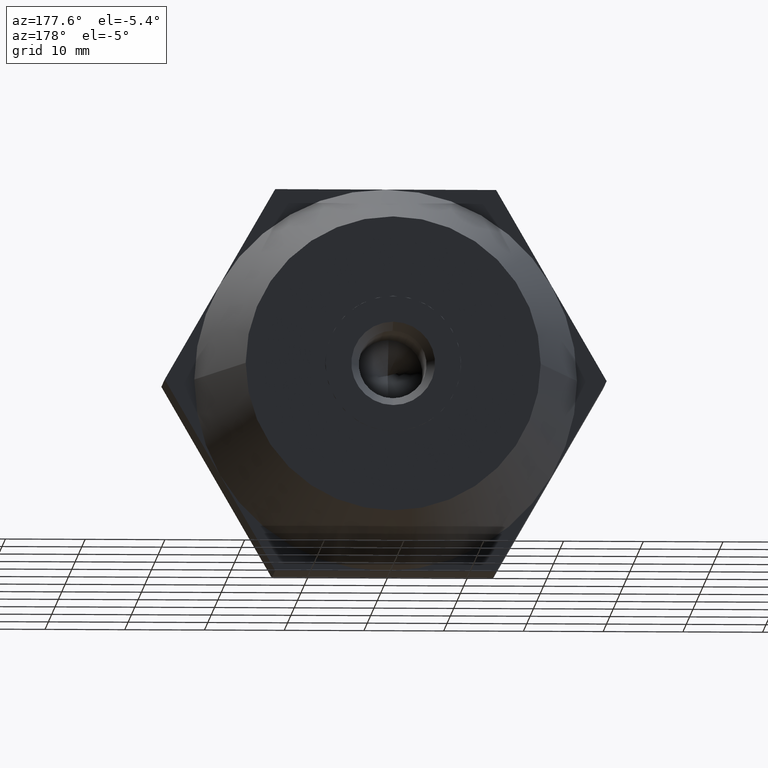
[diagram: clean part render]
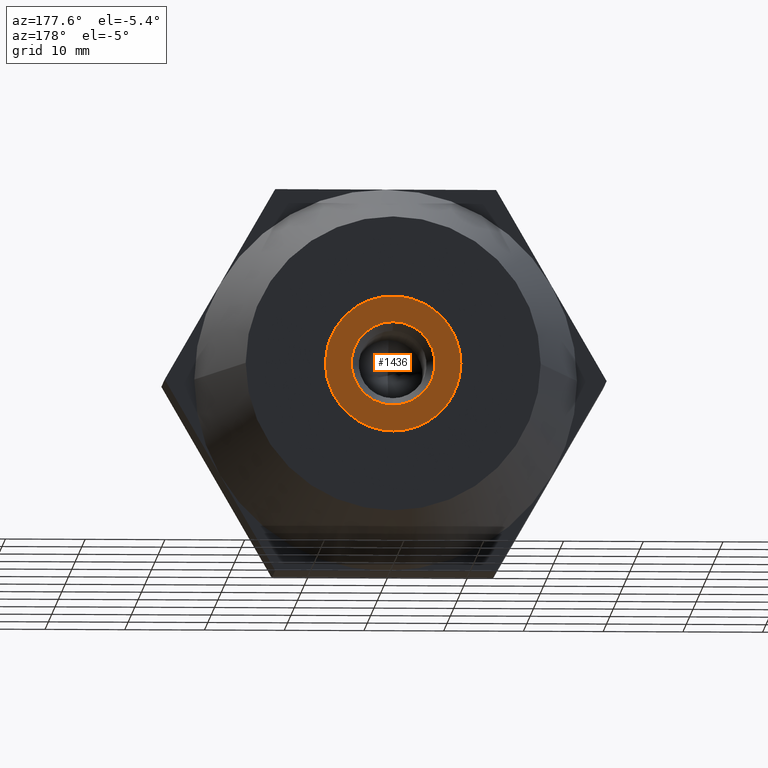
[diagram: same view with one face highlighted and labeled with its STEP entity id]
A machine part, auxiliary view. The second image highlights one B-rep face of the part: STEP entity #1436.
In plain terms, the highlighted planar face has unit normal (0, 1, 0).
Its self-contained STEP definition (entity closure, byte-faithful):
#30 = VERTEX_POINT ( 'NONE', #1177 ) ;
#122 = FACE_BOUND ( 'NONE', #180, .T. ) ;
#143 = DIRECTION ( 'NONE',  ( 0.0000000000000000000, 0.0000000000000000000, 1.000000000000000000 ) ) ;
#180 = EDGE_LOOP ( 'NONE', ( #1931, #3163 ) ) ;
#213 = CARTESIAN_POINT ( 'NONE',  ( 4.250000000000000000, 17.00000000000000000, -7.361215932167730200 ) ) ;
#286 = CARTESIAN_POINT ( 'NONE',  ( -8.500000000000000000, 17.00000000000000000, 0.0000000000000000000 ) ) ;
#290 = ORIENTED_EDGE ( 'NONE', *, *, #553, .F. ) ;
#320 = DIRECTION ( 'NONE',  ( 0.0000000000000000000, 1.000000000000000000, 0.0000000000000000000 ) ) ;
#355 = DIRECTION ( 'NONE',  ( 0.0000000000000000000, 0.0000000000000000000, 1.000000000000000000 ) ) ;
#366 = CARTESIAN_POINT ( 'NONE',  ( 0.0000000000000000000, 17.00000000000000000, 0.0000000000000000000 ) ) ;
#404 = ORIENTED_EDGE ( 'NONE', *, *, #2368, .F. ) ;
#483 = CARTESIAN_POINT ( 'NONE',  ( 0.0000000000000000000, 17.00000000000000000, 0.0000000000000000000 ) ) ;
#524 = DIRECTION ( 'NONE',  ( 0.0000000000000000000, 0.0000000000000000000, 1.000000000000000000 ) ) ;
#553 = EDGE_CURVE ( 'NONE', #2452, #1314, #3205, .T. ) ;
#590 = CARTESIAN_POINT ( 'NONE',  ( -4.250000000000000000, 17.00000000000000000, -7.361215932167730200 ) ) ;
#666 = ORIENTED_EDGE ( 'NONE', *, *, #1765, .F. ) ;
#697 = ORIENTED_EDGE ( 'NONE', *, *, #1522, .F. ) ;
#700 = CARTESIAN_POINT ( 'NONE',  ( 0.0000000000000000000, 17.00000000000000000, 0.0000000000000000000 ) ) ;
#751 = CARTESIAN_POINT ( 'NONE',  ( 0.0000000000000000000, 17.00000000000000000, 0.0000000000000000000 ) ) ;
#830 = EDGE_CURVE ( 'NONE', #2135, #30, #1939, .T. ) ;
#889 = CIRCLE ( 'NONE', #3684, 8.500000000000000000 ) ;
#968 = CARTESIAN_POINT ( 'NONE',  ( 0.0000000000000000000, 17.00000000000000000, 5.250000000000000000 ) ) ;
#1082 = CARTESIAN_POINT ( 'NONE',  ( -4.250000000000000000, 17.00000000000000000, 7.361215932167730200 ) ) ;
#1095 = DIRECTION ( 'NONE',  ( -0.0000000000000000000, -1.000000000000000000, -0.0000000000000000000 ) ) ;
#1177 = CARTESIAN_POINT ( 'NONE',  ( 6.429395695523604200E-016, 17.00000000000000000, -5.250000000000000000 ) ) ;
#1226 = DIRECTION ( 'NONE',  ( 0.0000000000000000000, 0.0000000000000000000, 1.000000000000000000 ) ) ;
#1262 = DIRECTION ( 'NONE',  ( -0.0000000000000000000, -1.000000000000000000, -0.0000000000000000000 ) ) ;
#1293 = CARTESIAN_POINT ( 'NONE',  ( 0.0000000000000000000, 17.00000000000000000, 0.0000000000000000000 ) ) ;
#1314 = VERTEX_POINT ( 'NONE', #590 ) ;
#1316 = EDGE_CURVE ( 'NONE', #30, #2135, #3863, .T. ) ;
#1395 = AXIS2_PLACEMENT_3D ( 'NONE', #3468, #2583, #1606 ) ;
#1436 = ADVANCED_FACE ( 'NONE', ( #2664, #122 ), #1540, .T. ) ;
#1522 = EDGE_CURVE ( 'NONE', #1733, #2452, #2457, .T. ) ;
#1540 = PLANE ( 'NONE',  #1545 ) ;
#1545 = AXIS2_PLACEMENT_3D ( 'NONE', #3745, #2769, #3382 ) ;
#1579 = AXIS2_PLACEMENT_3D ( 'NONE', #366, #1917, #1904 ) ;
#1606 = DIRECTION ( 'NONE',  ( -1.776356839400250500E-015, 0.0000000000000000000, 1.000000000000000000 ) ) ;
#1675 = EDGE_CURVE ( 'NONE', #1796, #3692, #3956, .T. ) ;
#1733 = VERTEX_POINT ( 'NONE', #1082 ) ;
#1748 = VERTEX_POINT ( 'NONE', #3226 ) ;
#1765 = EDGE_CURVE ( 'NONE', #1748, #1733, #2717, .T. ) ;
#1796 = VERTEX_POINT ( 'NONE', #213 ) ;
#1818 = CIRCLE ( 'NONE', #1579, 8.500000000000000000 ) ;
#1860 = AXIS2_PLACEMENT_3D ( 'NONE', #751, #1962, #143 ) ;
#1888 = CIRCLE ( 'NONE', #3958, 8.500000000000000000 ) ;
#1904 = DIRECTION ( 'NONE',  ( 2.664535259100376100E-015, 0.0000000000000000000, 1.000000000000000000 ) ) ;
#1917 = DIRECTION ( 'NONE',  ( -0.0000000000000000000, -1.000000000000000000, -0.0000000000000000000 ) ) ;
#1931 = ORIENTED_EDGE ( 'NONE', *, *, #830, .F. ) ;
#1939 = CIRCLE ( 'NONE', #1860, 5.250000000000000000 ) ;
#1960 = AXIS2_PLACEMENT_3D ( 'NONE', #3013, #3287, #524 ) ;
#1962 = DIRECTION ( 'NONE',  ( 0.0000000000000000000, 1.000000000000000000, 0.0000000000000000000 ) ) ;
#2081 = ORIENTED_EDGE ( 'NONE', *, *, #1675, .F. ) ;
#2108 = EDGE_CURVE ( 'NONE', #3052, #1796, #889, .T. ) ;
#2115 = CARTESIAN_POINT ( 'NONE',  ( 0.0000000000000000000, 17.00000000000000000, 0.0000000000000000000 ) ) ;
#2135 = VERTEX_POINT ( 'NONE', #968 ) ;
#2290 = DIRECTION ( 'NONE',  ( 0.0000000000000000000, 0.0000000000000000000, 1.000000000000000000 ) ) ;
#2368 = EDGE_CURVE ( 'NONE', #3692, #1748, #1888, .T. ) ;
#2452 = VERTEX_POINT ( 'NONE', #286 ) ;
#2457 = CIRCLE ( 'NONE', #2728, 8.500000000000000000 ) ;
#2475 = EDGE_LOOP ( 'NONE', ( #697, #666, #404, #2081, #2882, #3840, #290 ) ) ;
#2551 = DIRECTION ( 'NONE',  ( 0.0000000000000000000, 0.0000000000000000000, 1.000000000000000000 ) ) ;
#2583 = DIRECTION ( 'NONE',  ( -0.0000000000000000000, -1.000000000000000000, -0.0000000000000000000 ) ) ;
#2664 = FACE_OUTER_BOUND ( 'NONE', #2475, .T. ) ;
#2717 = CIRCLE ( 'NONE', #1960, 8.500000000000000000 ) ;
#2728 = AXIS2_PLACEMENT_3D ( 'NONE', #1293, #3767, #2551 ) ;
#2769 = DIRECTION ( 'NONE',  ( 0.0000000000000000000, 1.000000000000000000, 0.0000000000000000000 ) ) ;
#2882 = ORIENTED_EDGE ( 'NONE', *, *, #2108, .F. ) ;
#2896 = CARTESIAN_POINT ( 'NONE',  ( 0.0000000000000000000, 17.00000000000000000, -8.500000000000001800 ) ) ;
#2947 = CARTESIAN_POINT ( 'NONE',  ( 0.0000000000000000000, 17.00000000000000000, 0.0000000000000000000 ) ) ;
#2963 = DIRECTION ( 'NONE',  ( 3.552713678800500900E-015, 0.0000000000000000000, 1.000000000000000000 ) ) ;
#3013 = CARTESIAN_POINT ( 'NONE',  ( 0.0000000000000000000, 17.00000000000000000, 0.0000000000000000000 ) ) ;
#3052 = VERTEX_POINT ( 'NONE', #2896 ) ;
#3163 = ORIENTED_EDGE ( 'NONE', *, *, #1316, .F. ) ;
#3205 = CIRCLE ( 'NONE', #3321, 8.500000000000000000 ) ;
#3226 = CARTESIAN_POINT ( 'NONE',  ( 4.250000000000000000, 17.00000000000000000, 7.361215932167730200 ) ) ;
#3287 = DIRECTION ( 'NONE',  ( -0.0000000000000000000, -1.000000000000000000, -0.0000000000000000000 ) ) ;
#3321 = AXIS2_PLACEMENT_3D ( 'NONE', #483, #3538, #2290 ) ;
#3382 = DIRECTION ( 'NONE',  ( 0.0000000000000000000, 0.0000000000000000000, 1.000000000000000000 ) ) ;
#3427 = CARTESIAN_POINT ( 'NONE',  ( 8.500000000000000000, 17.00000000000000000, -3.004629197474319600E-015 ) ) ;
#3468 = CARTESIAN_POINT ( 'NONE',  ( 0.0000000000000000000, 17.00000000000000000, 0.0000000000000000000 ) ) ;
#3538 = DIRECTION ( 'NONE',  ( -0.0000000000000000000, -1.000000000000000000, -0.0000000000000000000 ) ) ;
#3684 = AXIS2_PLACEMENT_3D ( 'NONE', #700, #1262, #355 ) ;
#3692 = VERTEX_POINT ( 'NONE', #3427 ) ;
#3745 = CARTESIAN_POINT ( 'NONE',  ( 0.0000000000000000000, 17.00000000000000000, 0.0000000000000000000 ) ) ;
#3767 = DIRECTION ( 'NONE',  ( -0.0000000000000000000, -1.000000000000000000, -0.0000000000000000000 ) ) ;
#3825 = EDGE_CURVE ( 'NONE', #1314, #3052, #1818, .T. ) ;
#3829 = AXIS2_PLACEMENT_3D ( 'NONE', #2115, #320, #1226 ) ;
#3840 = ORIENTED_EDGE ( 'NONE', *, *, #3825, .F. ) ;
#3863 = CIRCLE ( 'NONE', #3829, 5.250000000000000000 ) ;
#3956 = CIRCLE ( 'NONE', #1395, 8.500000000000000000 ) ;
#3958 = AXIS2_PLACEMENT_3D ( 'NONE', #2947, #1095, #2963 ) ;